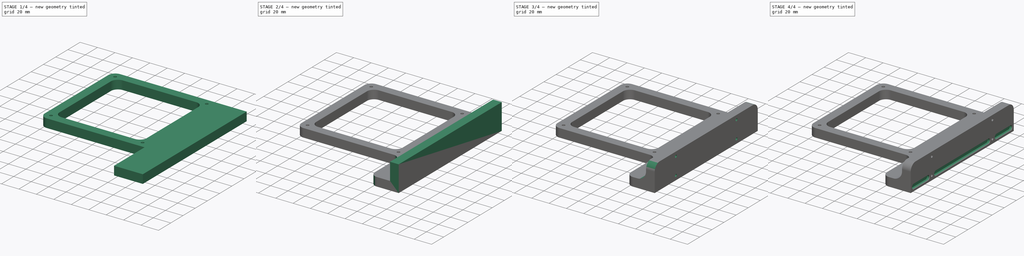
[diagram: build sequence overview — one tinted view per stage of 4, left to right]
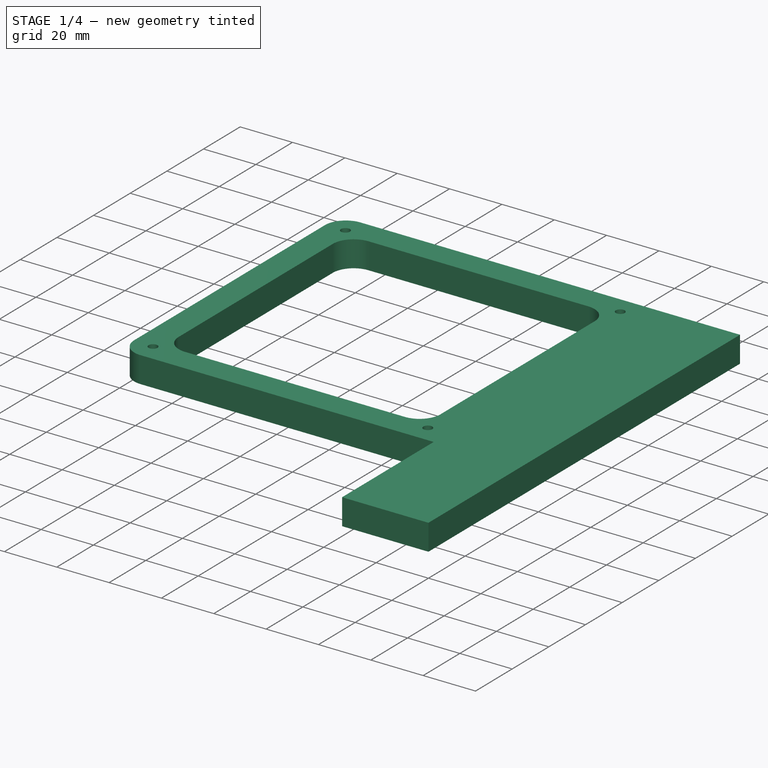
[diagram: stage 1 of 4 — iso view after this stage's code; geometry added in this stage tinted green]
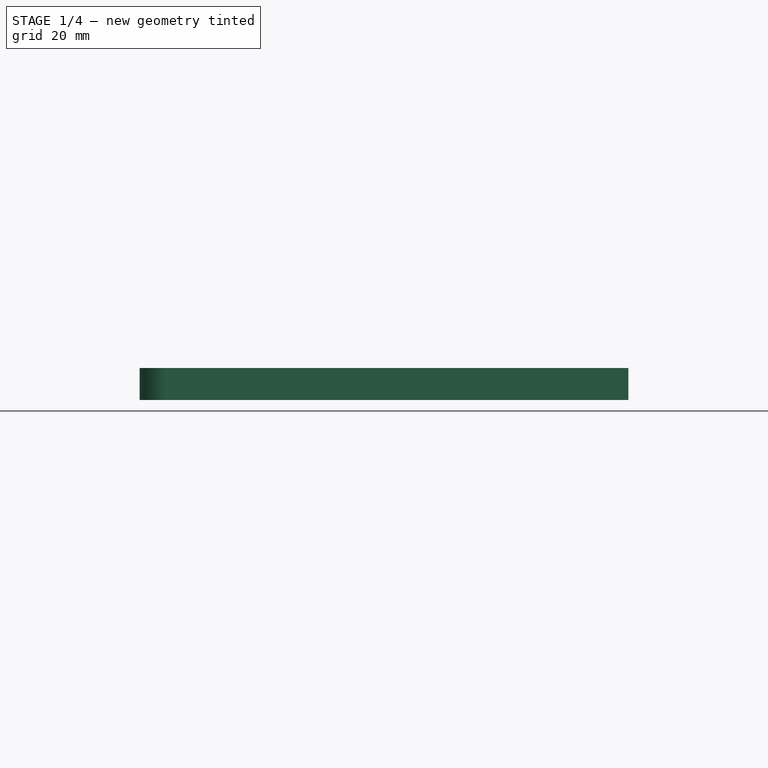
[diagram: stage 1 of 4 — front view after this stage's code; geometry added in this stage tinted green]
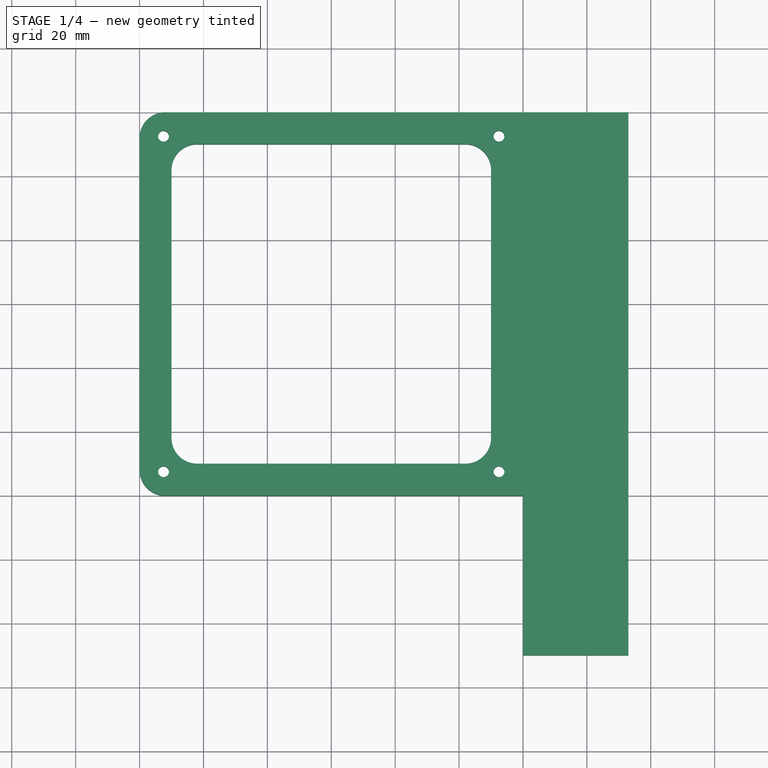
[diagram: stage 1 of 4 — top view after this stage's code; geometry added in this stage tinted green]
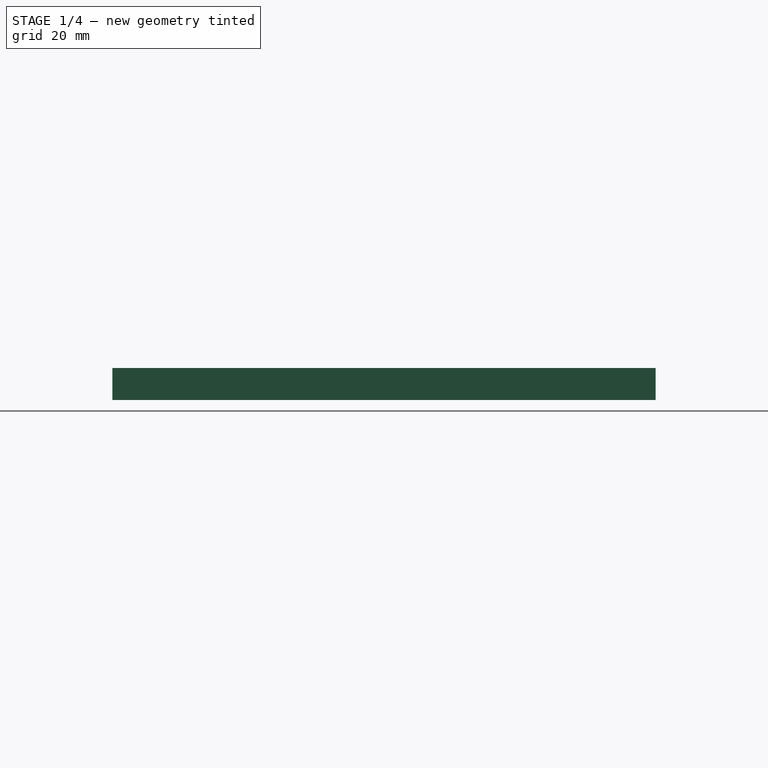
[diagram: stage 1 of 4 — right view after this stage's code; geometry added in this stage tinted green]
FCSTD DOCUMENT  (FreeCAD 1.0R39109 (Git))
Label: ArcticBracket
License: All rights reserved
LicenseURL: https://en.wikipedia.org/wiki/All_rights_reserved
objects: Sketcher::SketchObject×5, PartDesign::Fillet×4, PartDesign::Pad×3, PartDesign::Pocket×2, PartDesign::Body×1
note: 38 computed .brp shape members not serialized (recipe doc carries the construction recipe); baked Part::Feature solids carry a one-line shape summary decoded from their .brp

FEATURE [Sketcher::SketchObject] Sketch
  ArcFitTolerance = 1e-06
  AttachmentSupport = -> [XY_Plane]
  FullyConstrained = true
  MakeInternals = false
  MapMode = 5
  sketch-geometry (26):
    g0: LineSegment StartX=-60 StartY=52 StartZ=0 EndX=-60 EndY=-52 EndZ=0
    g1: LineSegment StartX=-52 StartY=-60 StartZ=0 EndX=60 EndY=-60 EndZ=0
    g2: LineSegment StartX=60 StartY=-60 StartZ=0 EndX=60 EndY=60 EndZ=0
    g3: LineSegment StartX=60 StartY=60 StartZ=0 EndX=-52 EndY=60 EndZ=0
    g4: GeomPoint [constr] X=0 Y=0 Z=0
    g5: ArcOfCircle CenterX=-52 CenterY=52 CenterZ=0 NormalX=0 NormalY=0 NormalZ=1 AngleXU=0 Radius=8 StartAngle=1.5708 EndAngle=3.14159
    g6: GeomPoint [constr] X=-60 Y=60 Z=0
    g7: ArcOfCircle CenterX=-52 CenterY=-52 CenterZ=0 NormalX=0 NormalY=0 NormalZ=1 AngleXU=0 Radius=8 StartAngle=3.14159 EndAngle=4.71239
    g8: GeomPoint [constr] X=-60 Y=-60 Z=0
    g9: Circle CenterX=52.5 CenterY=52.5 CenterZ=0 NormalX=0 NormalY=0 NormalZ=1 AngleXU=0 Radius=1.7
    g10: Circle CenterX=52.5 CenterY=-52.5 CenterZ=0 NormalX=0 NormalY=0 NormalZ=1 AngleXU=0 Radius=1.7
    g11: Circle CenterX=-52.5 CenterY=-52.5 CenterZ=0 NormalX=0 NormalY=0 NormalZ=1 AngleXU=0 Radius=1.7
    g12: Circle CenterX=-52.5 CenterY=52.5 CenterZ=0 NormalX=0 NormalY=0 NormalZ=1 AngleXU=0 Radius=1.7
    g13: LineSegment StartX=-50 StartY=42 StartZ=0 EndX=-50 EndY=-42 EndZ=0
    g14: LineSegment StartX=-42 StartY=-50 StartZ=0 EndX=42 EndY=-50 EndZ=0
    g15: LineSegment StartX=50 StartY=-42 StartZ=0 EndX=50 EndY=42 EndZ=0
    g16: LineSegment StartX=42 StartY=50 StartZ=0 EndX=-42 EndY=50 EndZ=0
    g17: GeomPoint [constr] X=0 Y=0 Z=0
    g18: ArcOfCircle CenterX=42 CenterY=42 CenterZ=0 NormalX=0 NormalY=0 NormalZ=1 AngleXU=0 Radius=8 StartAngle=0 EndAngle=1.5708
    g19: GeomPoint [constr] X=50 Y=50 Z=0
    g20: ArcOfCircle CenterX=42 CenterY=-42 CenterZ=0 NormalX=0 NormalY=0 NormalZ=1 AngleXU=0 Radius=8 StartAngle=4.71239 EndAngle=6.28319
    g21: GeomPoint [constr] X=50 Y=-50 Z=0
    g22: ArcOfCircle CenterX=-42 CenterY=-42 CenterZ=0 NormalX=0 NormalY=0 NormalZ=1 AngleXU=0 Radius=8 StartAngle=3.14159 EndAngle=4.71239
    g23: GeomPoint [constr] X=-50 Y=-50 Z=0
    g24: ArcOfCircle CenterX=-42 CenterY=42 CenterZ=0 NormalX=0 NormalY=0 NormalZ=1 AngleXU=0 Radius=8 StartAngle=1.5708 EndAngle=3.14159
    g25: GeomPoint [constr] X=-50 Y=50 Z=0
  constraints (57):
    c: Coincident(g1,g2)
    c: Coincident(g2,g3)
    c: Vertical(g0)
    c: Vertical(g2)
    c: Horizontal(g1)
    c: Horizontal(g3)
    c: Symmetric(g2,g6,g4)
    c: Coincident(g4,g-1)
    c: DistanceY(g2,g2) = 120
    c: PointOnObject(g6,g3)
    c: PointOnObject(g6,g0)
    c: Tangent(g3,g5) = -1.5708
    c: Tangent(g0,g5) = -1.5708
    c: PointOnObject(g8,g0)
    c: PointOnObject(g8,g1)
    c: Tangent(g0,g7) = -1.5708
    c: Tangent(g1,g7) = -1.5708
    c: Equal(g7,g5)
    c: Distance(g2,g0) = 120
    c: Radius(g7) = 8
    c: Symmetric(g12,g9,g-2)
    c: Symmetric(g12,g11,g-1)
    c: Symmetric(g10,g9,g-1)
    c: Equal(g10,g9)
    c: Equal(g9,g12)
    c: Equal(g12,g11)
    c: Diameter(g10) = 3.4
    c: DistanceX(g11,g10) = 105
    c: DistanceY(g11,g12) = 105
    c: Vertical(g13)
    c: Vertical(g15)
    c: Horizontal(g14)
    c: Horizontal(g16)
    c: Symmetric(g21,g25,g17)
    c: Coincident(g17,g4)
    c: DistanceY(g21,g19) = 100
    c: PointOnObject(g19,g16)
    c: PointOnObject(g19,g15)
    c: Tangent(g16,g18) = -1.5708
    c: Tangent(g15,g18) = -1.5708
    c: PointOnObject(g21,g15)
    c: PointOnObject(g21,g14)
    c: Tangent(g15,g20) = -1.5708
    c: Tangent(g14,g20) = -1.5708
    c: PointOnObject(g23,g14)
    c: PointOnObject(g23,g13)
    c: Tangent(g14,g22) = -1.5708
    c: Tangent(g13,g22) = -1.5708
    c: PointOnObject(g25,g13)
    c: PointOnObject(g25,g16)
    c: Tangent(g13,g24) = -1.5708
    c: Tangent(g16,g24) = -1.5708
    c: Equal(g24,g18)
    c: Equal(g18,g20)
    c: Equal(g20,g22)
    c: Radius(g18) = 8
    c: Equal(g14,g15)
FEATURE [PartDesign::Pad] Pad
  Direction = (0,0,1)
  Length = 10
  Length2 = 10
  Midplane = true
  Profile = -> Sketch
  ReferenceAxis = -> Sketch [N_Axis]
  Refine = true
  Suppressed = false
  Type = 0
FEATURE [Sketcher::SketchObject] Sketch001
  ArcFitTolerance = 1e-06
  AttachmentSupport = -> [Pad]
  ExternalGeometry = -> [Pad]
  FullyConstrained = true
  MakeInternals = false
  MapMode = 5
  Placement = pos=(60,0,0) rot=(0.57735,0.57735,0.57735;2.0944rad)
  sketch-geometry (4):
    g0: LineSegment StartX=60 StartY=-5 StartZ=0 EndX=60 EndY=5 EndZ=0
    g1: LineSegment StartX=60 StartY=5 StartZ=0 EndX=-110 EndY=5 EndZ=0
    g2: LineSegment StartX=-110 StartY=5 StartZ=0 EndX=-110 EndY=-5 EndZ=0
    g3: LineSegment StartX=-110 StartY=-5 StartZ=0 EndX=60 EndY=-5 EndZ=0
  constraints (10):
    c: Coincident(g0,g1)
    c: Coincident(g1,g2)
    c: Coincident(g2,g3)
    c: Coincident(g3,g0)
    c: Vertical(g2)
    c: Horizontal(g1)
    c: Horizontal(g3)
    c: Coincident(g0,g-3)
    c: Coincident(g0,g-3)
    c: DistanceX(g1,g1) = 170
FEATURE [PartDesign::Pad] Pad001
  BaseFeature = -> Pad
  Direction = (1,0,0)
  Length = 33
  Length2 = 10
  Profile = -> Sketch001
  ReferenceAxis = -> Sketch001 [N_Axis]
  Refine = true
  Suppressed = false
  Type = 0
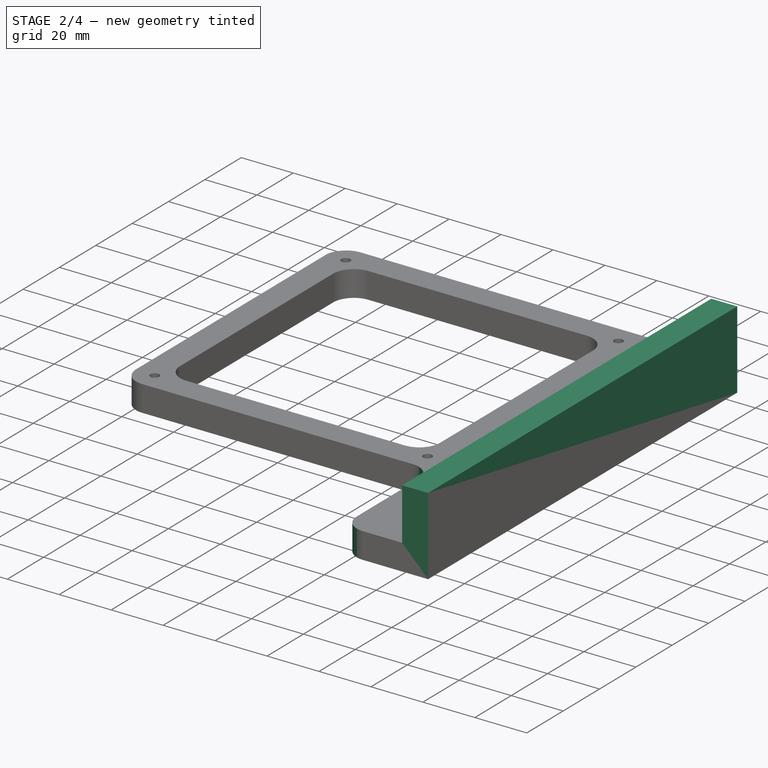
[diagram: stage 2 of 4 — iso view after this stage's code; geometry added in this stage tinted green]
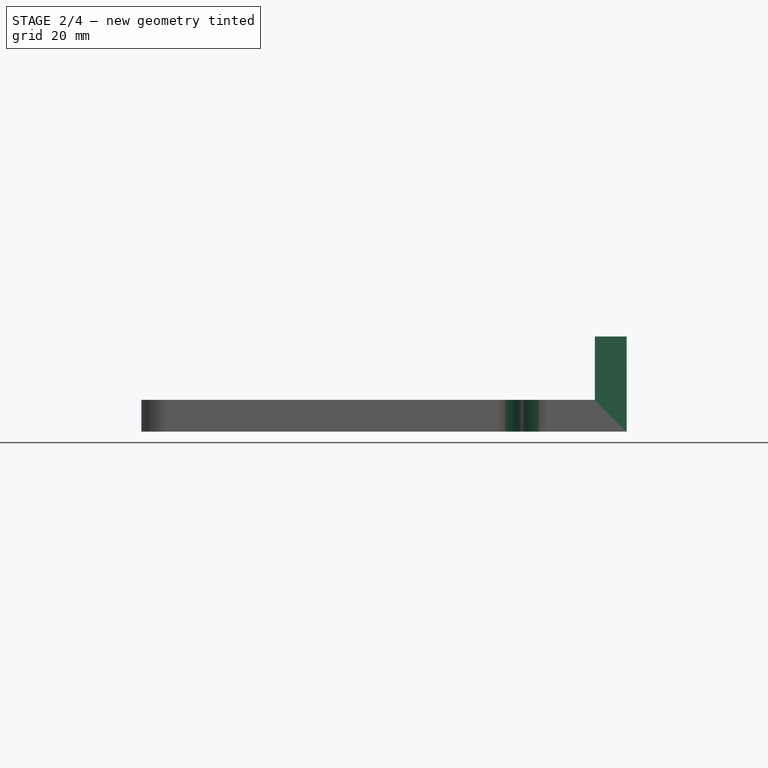
[diagram: stage 2 of 4 — front view after this stage's code; geometry added in this stage tinted green]
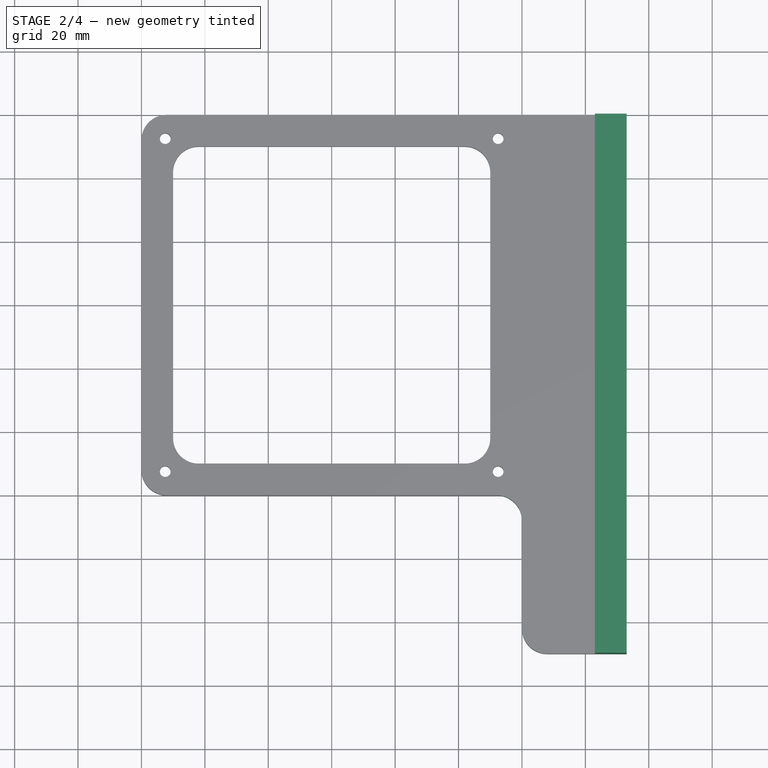
[diagram: stage 2 of 4 — top view after this stage's code; geometry added in this stage tinted green]
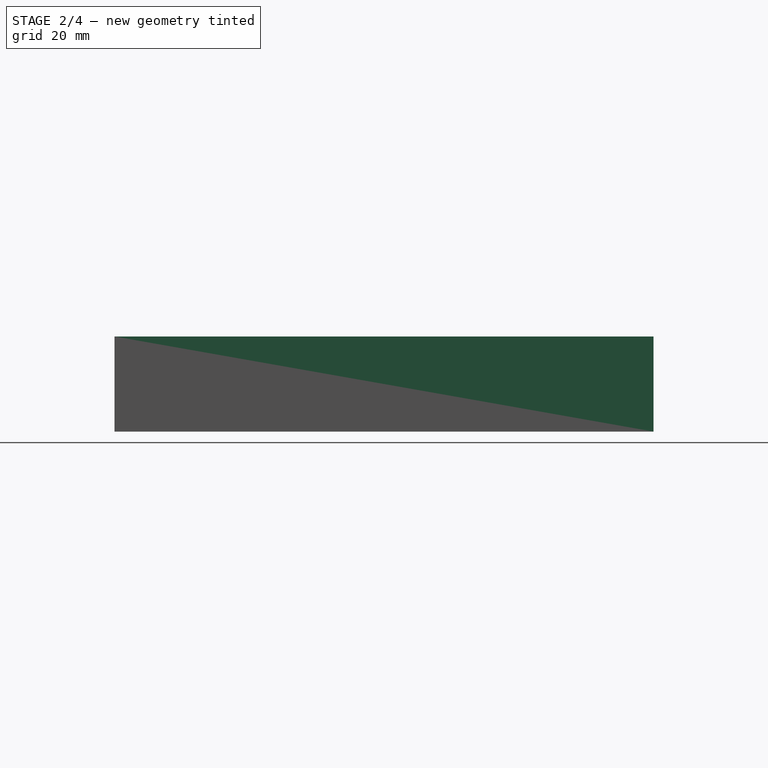
[diagram: stage 2 of 4 — right view after this stage's code; geometry added in this stage tinted green]
FEATURE [PartDesign::Fillet] Fillet
  Base = -> Pad001 [Edge11,Edge15]
  BaseFeature = -> Pad001
  Radius = 8
  Refine = true
  SupportTransform = false
  Suppressed = false
  UseAllEdges = false
FEATURE [Sketcher::SketchObject] Sketch002
  ArcFitTolerance = 1e-06
  AttachmentSupport = -> [Fillet]
  ExternalGeometry = -> [Fillet]
  FullyConstrained = true
  MakeInternals = false
  MapMode = 5
  Placement = pos=(0,0,5) rot=(0,0,1;0rad)
  sketch-geometry (4):
    g0: LineSegment StartX=93 StartY=60 StartZ=0 EndX=83 EndY=60 EndZ=0
    g1: LineSegment StartX=83 StartY=60 StartZ=0 EndX=83 EndY=-110 EndZ=0
    g2: LineSegment StartX=83 StartY=-110 StartZ=0 EndX=93 EndY=-110 EndZ=0
    g3: LineSegment StartX=93 StartY=-110 StartZ=0 EndX=93 EndY=60 EndZ=0
  constraints (10):
    c: Coincident(g0,g1)
    c: Coincident(g1,g2)
    c: Coincident(g2,g3)
    c: Coincident(g3,g0)
    c: Horizontal(g0)
    c: Horizontal(g2)
    c: Vertical(g1)
    c: Coincident(g0,g-3)
    c: Coincident(g2,g-3)
    c: Distance(g0,g0) = 10
FEATURE [PartDesign::Pad] Pad002
  BaseFeature = -> Fillet
  Direction = (0,0,1)
  Length = 20
  Length2 = 10
  Profile = -> Sketch002
  ReferenceAxis = -> Sketch002 [N_Axis]
  Refine = true
  Suppressed = false
  Type = 0
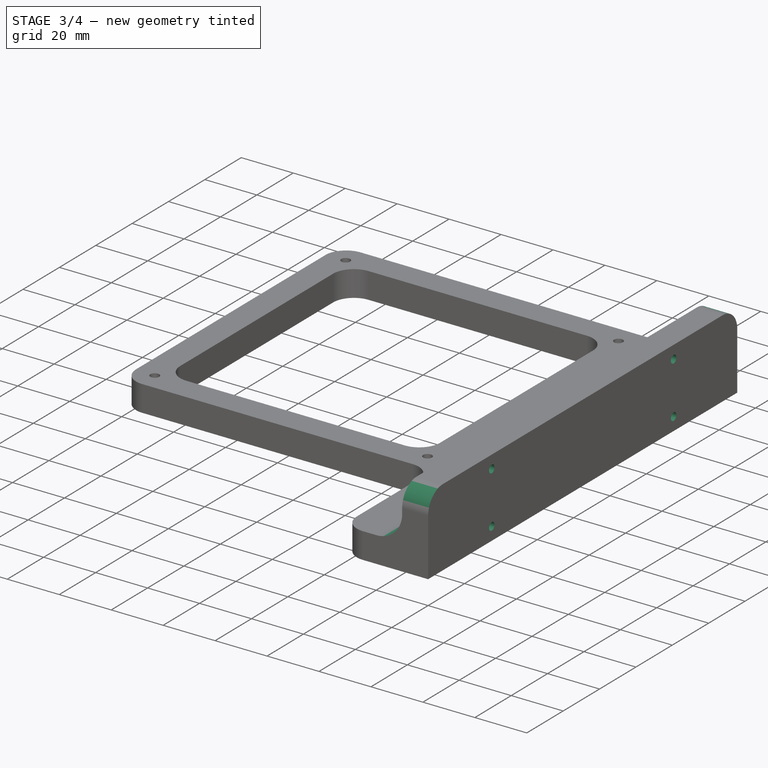
[diagram: stage 3 of 4 — iso view after this stage's code; geometry added in this stage tinted green]
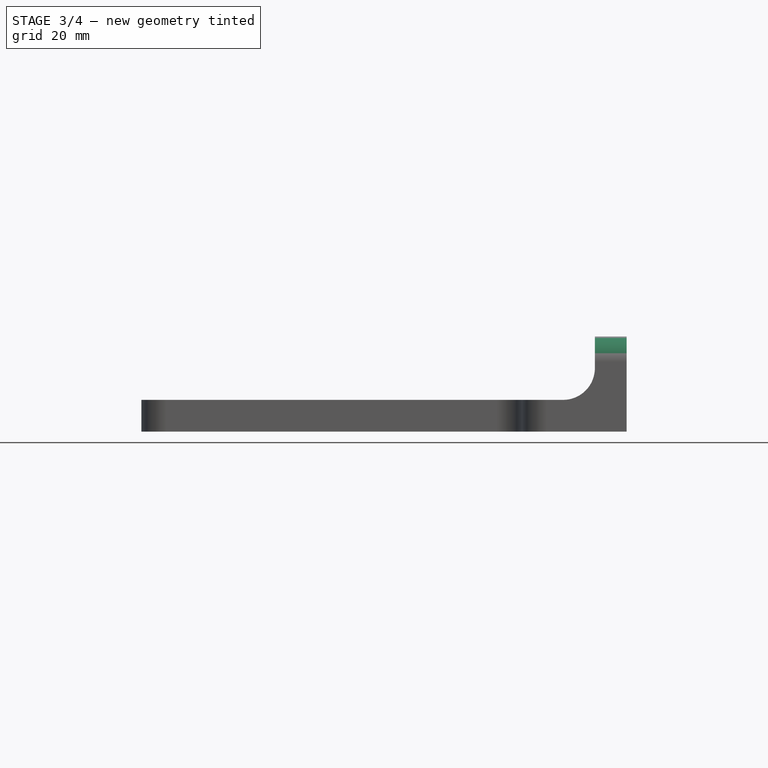
[diagram: stage 3 of 4 — front view after this stage's code; geometry added in this stage tinted green]
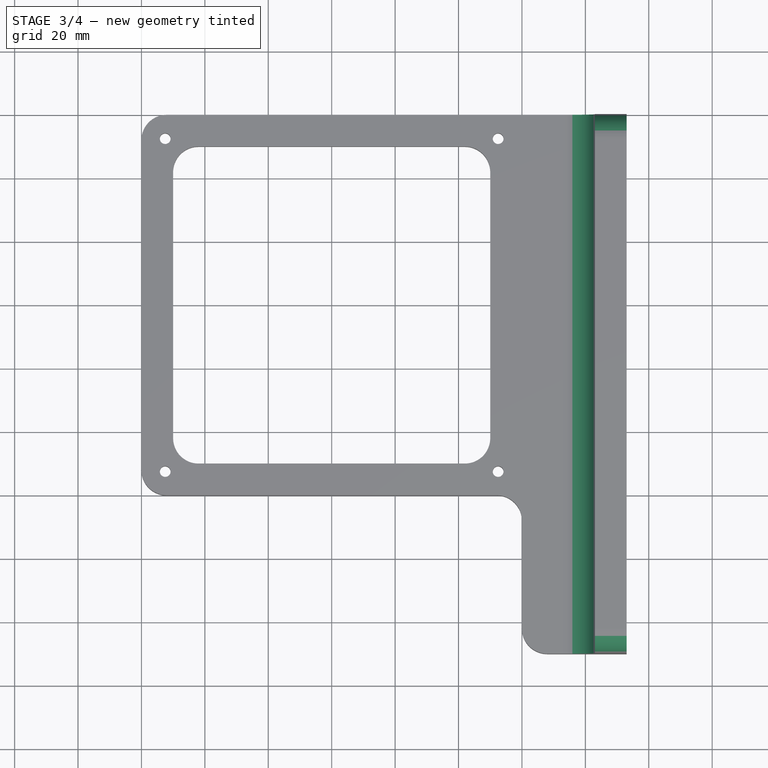
[diagram: stage 3 of 4 — top view after this stage's code; geometry added in this stage tinted green]
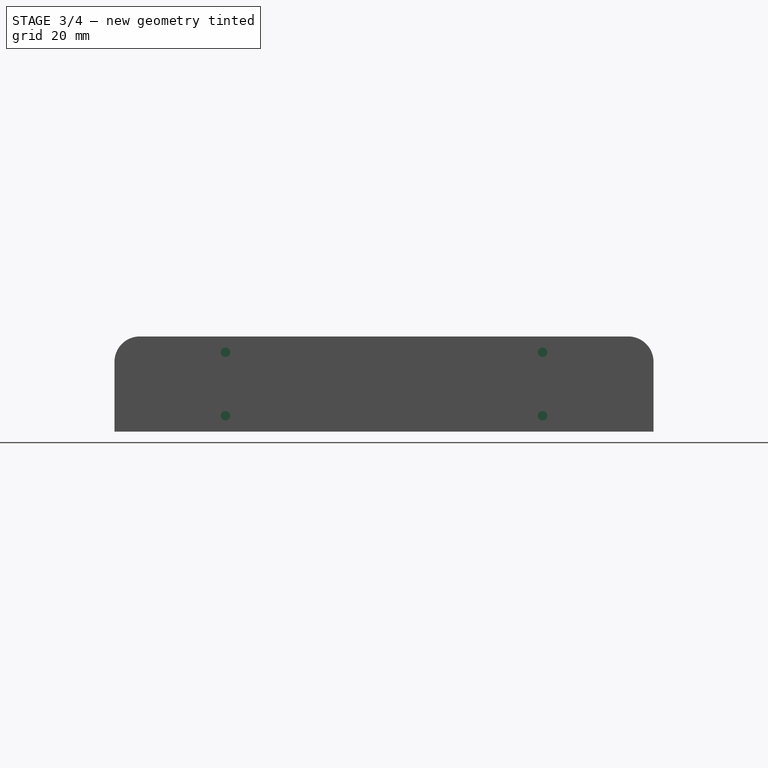
[diagram: stage 3 of 4 — right view after this stage's code; geometry added in this stage tinted green]
FEATURE [PartDesign::Fillet] Fillet001
  Base = -> Pad002 [Edge33]
  BaseFeature = -> Pad002
  Radius = 10
  Refine = true
  SupportTransform = false
  Suppressed = false
  UseAllEdges = false
FEATURE [Sketcher::SketchObject] Sketch003
  ArcFitTolerance = 1e-06
  AttachmentSupport = -> [Fillet001]
  ExternalGeometry = -> [Fillet001]
  FullyConstrained = true
  MakeInternals = false
  MapMode = 5
  Placement = pos=(93,0,0) rot=(0.57735,0.57735,0.57735;2.0944rad)
  sketch-geometry (7):
    g0: Circle CenterX=25 CenterY=0 CenterZ=0 NormalX=0 NormalY=0 NormalZ=1 AngleXU=0 Radius=1.5
    g1: Circle CenterX=-75 CenterY=0 CenterZ=0 NormalX=0 NormalY=0 NormalZ=1 AngleXU=0 Radius=1.5
    g2: Circle CenterX=25 CenterY=20 CenterZ=0 NormalX=0 NormalY=0 NormalZ=1 AngleXU=0 Radius=1.5
    g3: Circle CenterX=-75 CenterY=20 CenterZ=0 NormalX=0 NormalY=0 NormalZ=1 AngleXU=0 Radius=1.5
    g4: LineSegment [constr] StartX=-75 StartY=20 StartZ=0 EndX=-75 EndY=0 EndZ=0
    g5: LineSegment [constr] StartX=25 StartY=20 StartZ=0 EndX=25 EndY=0 EndZ=0
    g6: LineSegment [constr] StartX=-75 StartY=20 StartZ=0 EndX=25 EndY=20 EndZ=0
  constraints (18):
    c: PointOnObject(g0,g-1)
    c: PointOnObject(g1,g-1)
    c: DistanceX(g1,g0) = 100
    c: Distance(g0,g-3) = 35
    c: Equal(g3,g2)
    c: Equal(g2,g0)
    c: Equal(g0,g1)
    c: Coincident(g4,g3)
    c: Coincident(g4,g1)
    c: Vertical(g4)
    c: Coincident(g5,g2)
    c: Coincident(g5,g0)
    c: Vertical(g5)
    c: Coincident(g6,g3)
    c: Coincident(g6,g2)
    c: Horizontal(g6)
    c: DistanceY(g4,g4) = 20
    c: Diameter(g1) = 3
FEATURE [PartDesign::Pocket] Pocket
  BaseFeature = -> Fillet001
  Direction = (-1,0,0)
  Length = 7
  Length2 = 5
  Profile = -> Sketch003
  ReferenceAxis = -> Sketch003 [N_Axis]
  Refine = true
  Suppressed = false
  Type = 0
FEATURE [PartDesign::Fillet] Fillet002
  Base = -> Pocket [Edge36,Edge27]
  BaseFeature = -> Pocket
  Radius = 8
  Refine = true
  SupportTransform = false
  Suppressed = false
  UseAllEdges = false
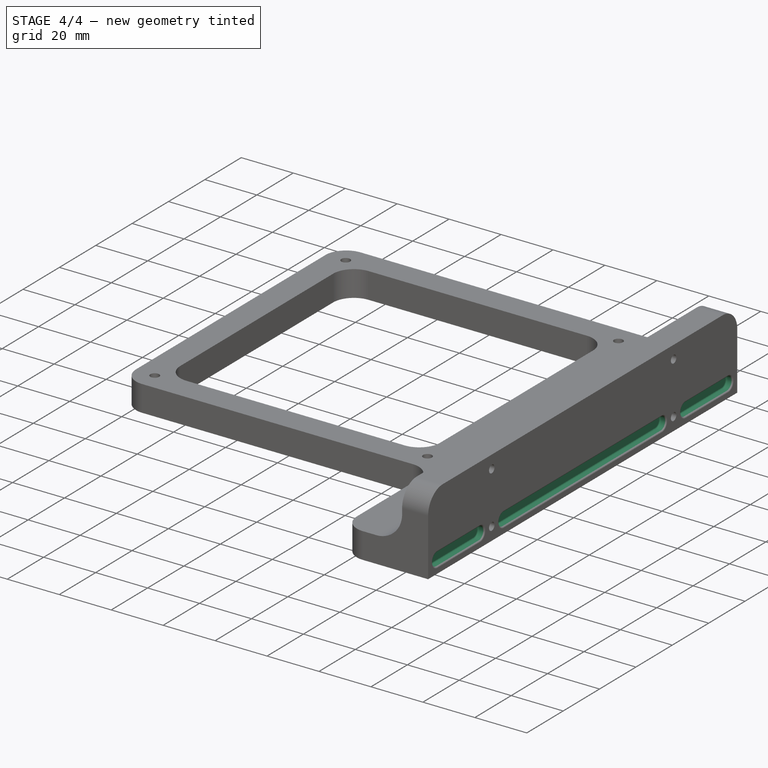
[diagram: stage 4 of 4 — iso view after this stage's code; geometry added in this stage tinted green]
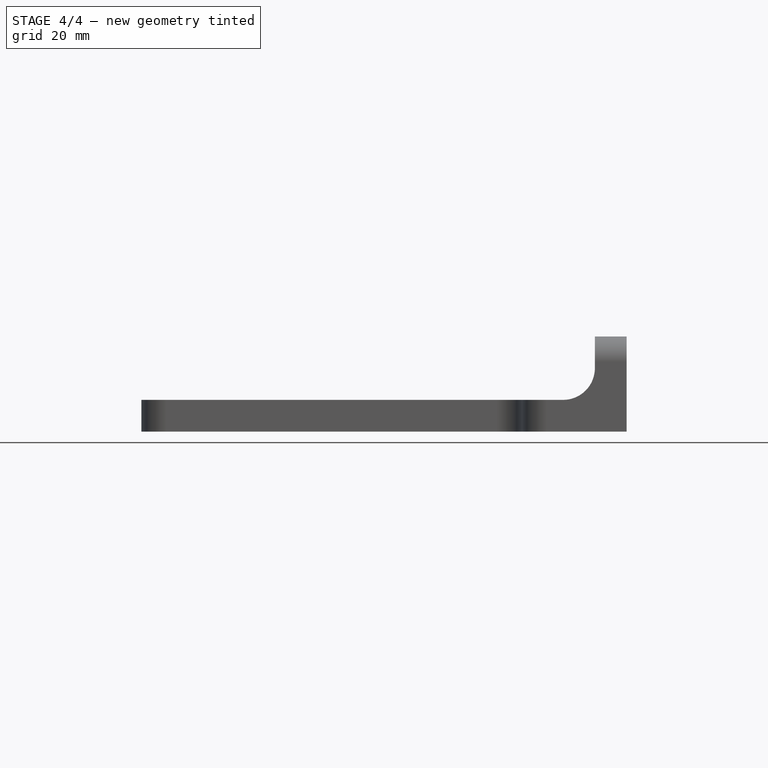
[diagram: stage 4 of 4 — front view after this stage's code; geometry added in this stage tinted green]
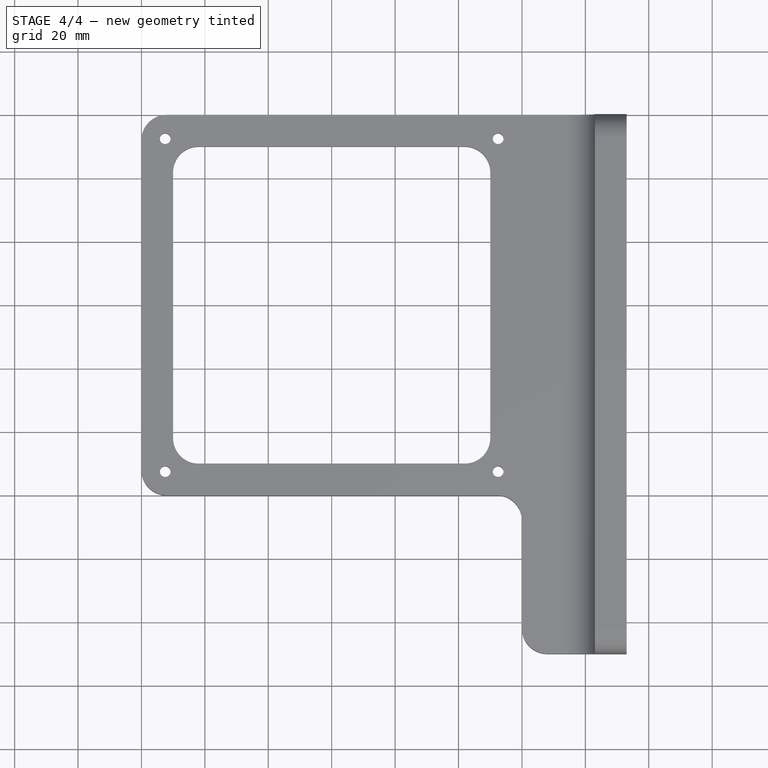
[diagram: stage 4 of 4 — top view after this stage's code; geometry added in this stage tinted green]
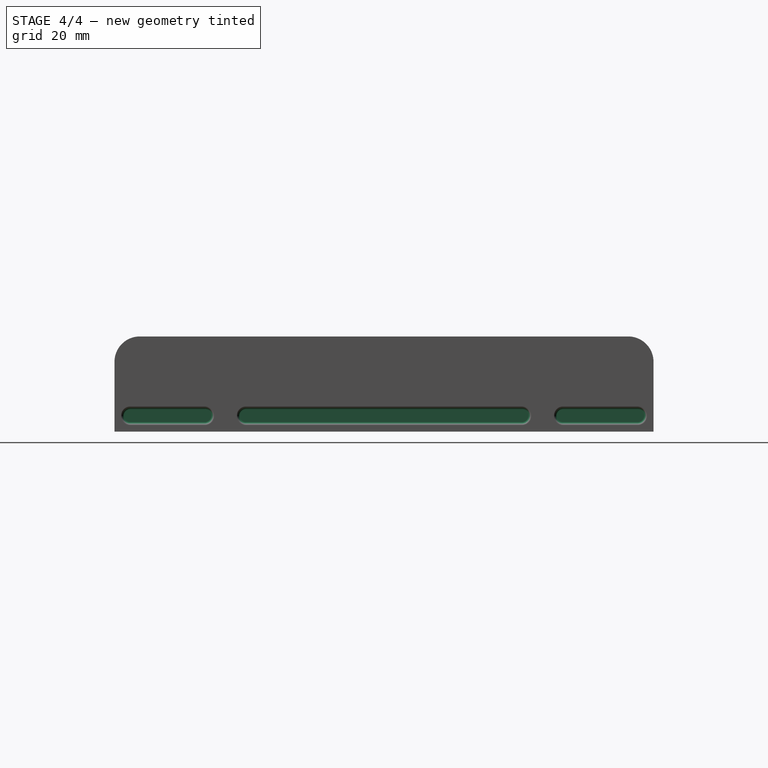
[diagram: stage 4 of 4 — right view after this stage's code; geometry added in this stage tinted green]
FEATURE [Sketcher::SketchObject] Sketch004
  ArcFitTolerance = 1e-06
  AttachmentSupport = -> [Fillet002]
  ExternalGeometry = -> [Fillet002]
  FullyConstrained = true
  MakeInternals = false
  MapMode = 5
  Placement = pos=(93,0,0) rot=(0.57735,0.57735,0.57735;2.0944rad)
  sketch-geometry (12):
    g0: ArcOfCircle CenterX=-105 CenterY=0 CenterZ=0 NormalX=0 NormalY=0 NormalZ=1 AngleXU=0 Radius=2.5 StartAngle=1.5708 EndAngle=4.71239
    g1: ArcOfCircle CenterX=-81.5 CenterY=0 CenterZ=0 NormalX=0 NormalY=0 NormalZ=1 AngleXU=0 Radius=2.5 StartAngle=4.71239 EndAngle=7.85398
    g2: LineSegment StartX=-105 StartY=2.5 StartZ=0 EndX=-81.5 EndY=2.5 EndZ=0
    g3: LineSegment StartX=-105 StartY=-2.5 StartZ=0 EndX=-81.5 EndY=-2.5 EndZ=0
    g4: ArcOfCircle CenterX=-68.5 CenterY=0 CenterZ=0 NormalX=0 NormalY=0 NormalZ=1 AngleXU=0 Radius=2.5 StartAngle=1.5708 EndAngle=4.71239
    g5: ArcOfCircle CenterX=18.5 CenterY=-1e-16 CenterZ=0 NormalX=0 NormalY=0 NormalZ=1 AngleXU=0 Radius=2.5 StartAngle=4.71239 EndAngle=7.85398
    g6: LineSegment StartX=-68.5 StartY=2.5 StartZ=0 EndX=18.5 EndY=2.5 EndZ=0
    g7: LineSegment StartX=-68.5 StartY=-2.5 StartZ=0 EndX=18.5 EndY=-2.5 EndZ=0
    g8: ArcOfCircle CenterX=31.5 CenterY=0 CenterZ=0 NormalX=0 NormalY=0 NormalZ=1 AngleXU=0 Radius=2.5 StartAngle=1.5708 EndAngle=4.71239
    g9: ArcOfCircle CenterX=55 CenterY=3.54e-12 CenterZ=0 NormalX=0 NormalY=0 NormalZ=1 AngleXU=0 Radius=2.5 StartAngle=4.71239 EndAngle=7.85398
    g10: LineSegment StartX=31.5 StartY=2.5 StartZ=0 EndX=55 EndY=2.5 EndZ=0
    g11: LineSegment StartX=31.5 StartY=-2.5 StartZ=0 EndX=55 EndY=-2.5 EndZ=0
  constraints (30):
    c: Tangent(g0,g2) = 1.5708
    c: Tangent(g0,g3) = -1.5708
    c: Tangent(g1,g2) = 1.5708
    c: Tangent(g1,g3) = -1.5708
    c: Equal(g0,g1)
    c: Horizontal(g3)
    c: PointOnObject(g0,g-1)
    c: Tangent(g4,g6) = 1.5708
    c: Tangent(g4,g7) = -1.5708
    c: Tangent(g5,g6) = 1.5708
    c: Tangent(g5,g7) = -1.5708
    c: Equal(g4,g5)
    c: Horizontal(g7)
    c: Tangent(g8,g10) = 1.5708
    c: Tangent(g8,g11) = -1.5708
    c: Tangent(g9,g10) = 1.5708
    c: Tangent(g9,g11) = -1.5708
    c: Equal(g8,g9)
    c: Horizontal(g11)
    c: PointOnObject(g8,g-1)
    c: Equal(g1,g4)
    c: Equal(g4,g8)
    c: Radius(g0) = 2.5
    c: PointOnObject(g4,g-1)
    c: Distance(g0,g-5) = 2.5
    c: Distance(g1,g-3) = 2.5
    c: Distance(g-3,g4) = 2.5
    c: Distance(g5,g-4) = 2.5
    c: Distance(g-4,g8) = 2.5
    c: Distance(g9,g-6) = 2.5
FEATURE [PartDesign::Pocket] Pocket001
  BaseFeature = -> Fillet002
  Direction = (-1,0,0)
  Length = 2.5
  Length2 = 5
  Profile = -> Sketch004
  ReferenceAxis = -> Sketch004 [N_Axis]
  Refine = true
  Suppressed = false
  Type = 0
FEATURE [PartDesign::Fillet] Fillet003
  Base = -> Pocket001 [Face49,Face51,Face46,Edge34,Edge35,Edge32,Edge33,Edge28,Edge30,Edge29,Edge27,Edge24,Edge22,Edge21,Edge23]
  BaseFeature = -> Pocket001
  Radius = 0.5
  Refine = true
  SupportTransform = false
  Suppressed = false
  UseAllEdges = false
FEATURE [PartDesign::Body] Body  label="bracket"
  AllowCompound = false
  Group = -> [Sketch,Pad,Sketch001,Pad001,Fillet,Sketch002,Pad002,Fillet001,Sketch003,Pocket,Fillet002,Sketch004,Pocket001,Fillet003]
  Origin = -> Origin
  Tip = -> Fillet003
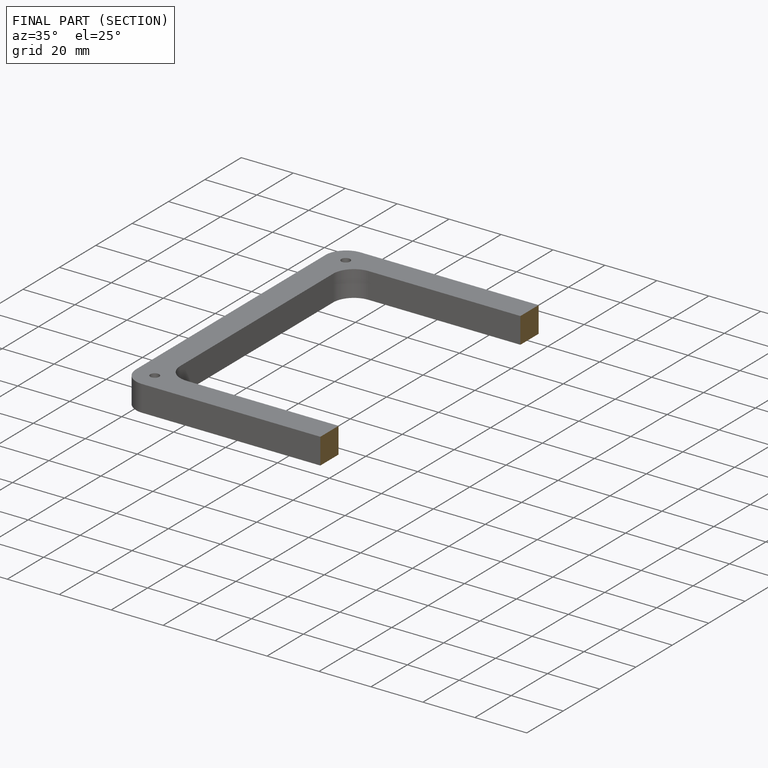
[diagram: finished part — half-section view (interior)]
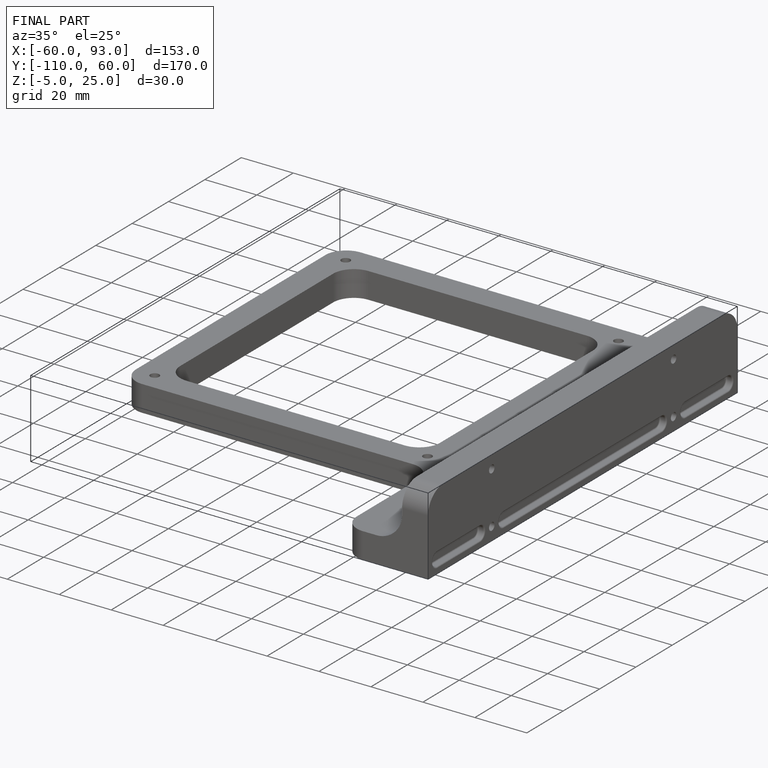
[diagram: finished part — iso view with bounding-box wireframe]
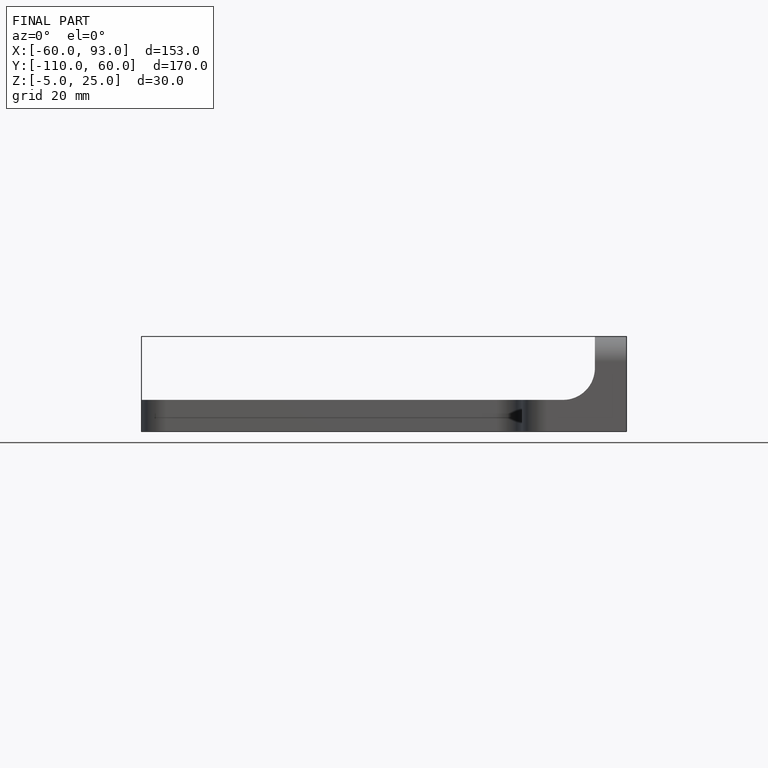
[diagram: finished part — front view with bounding-box wireframe]
